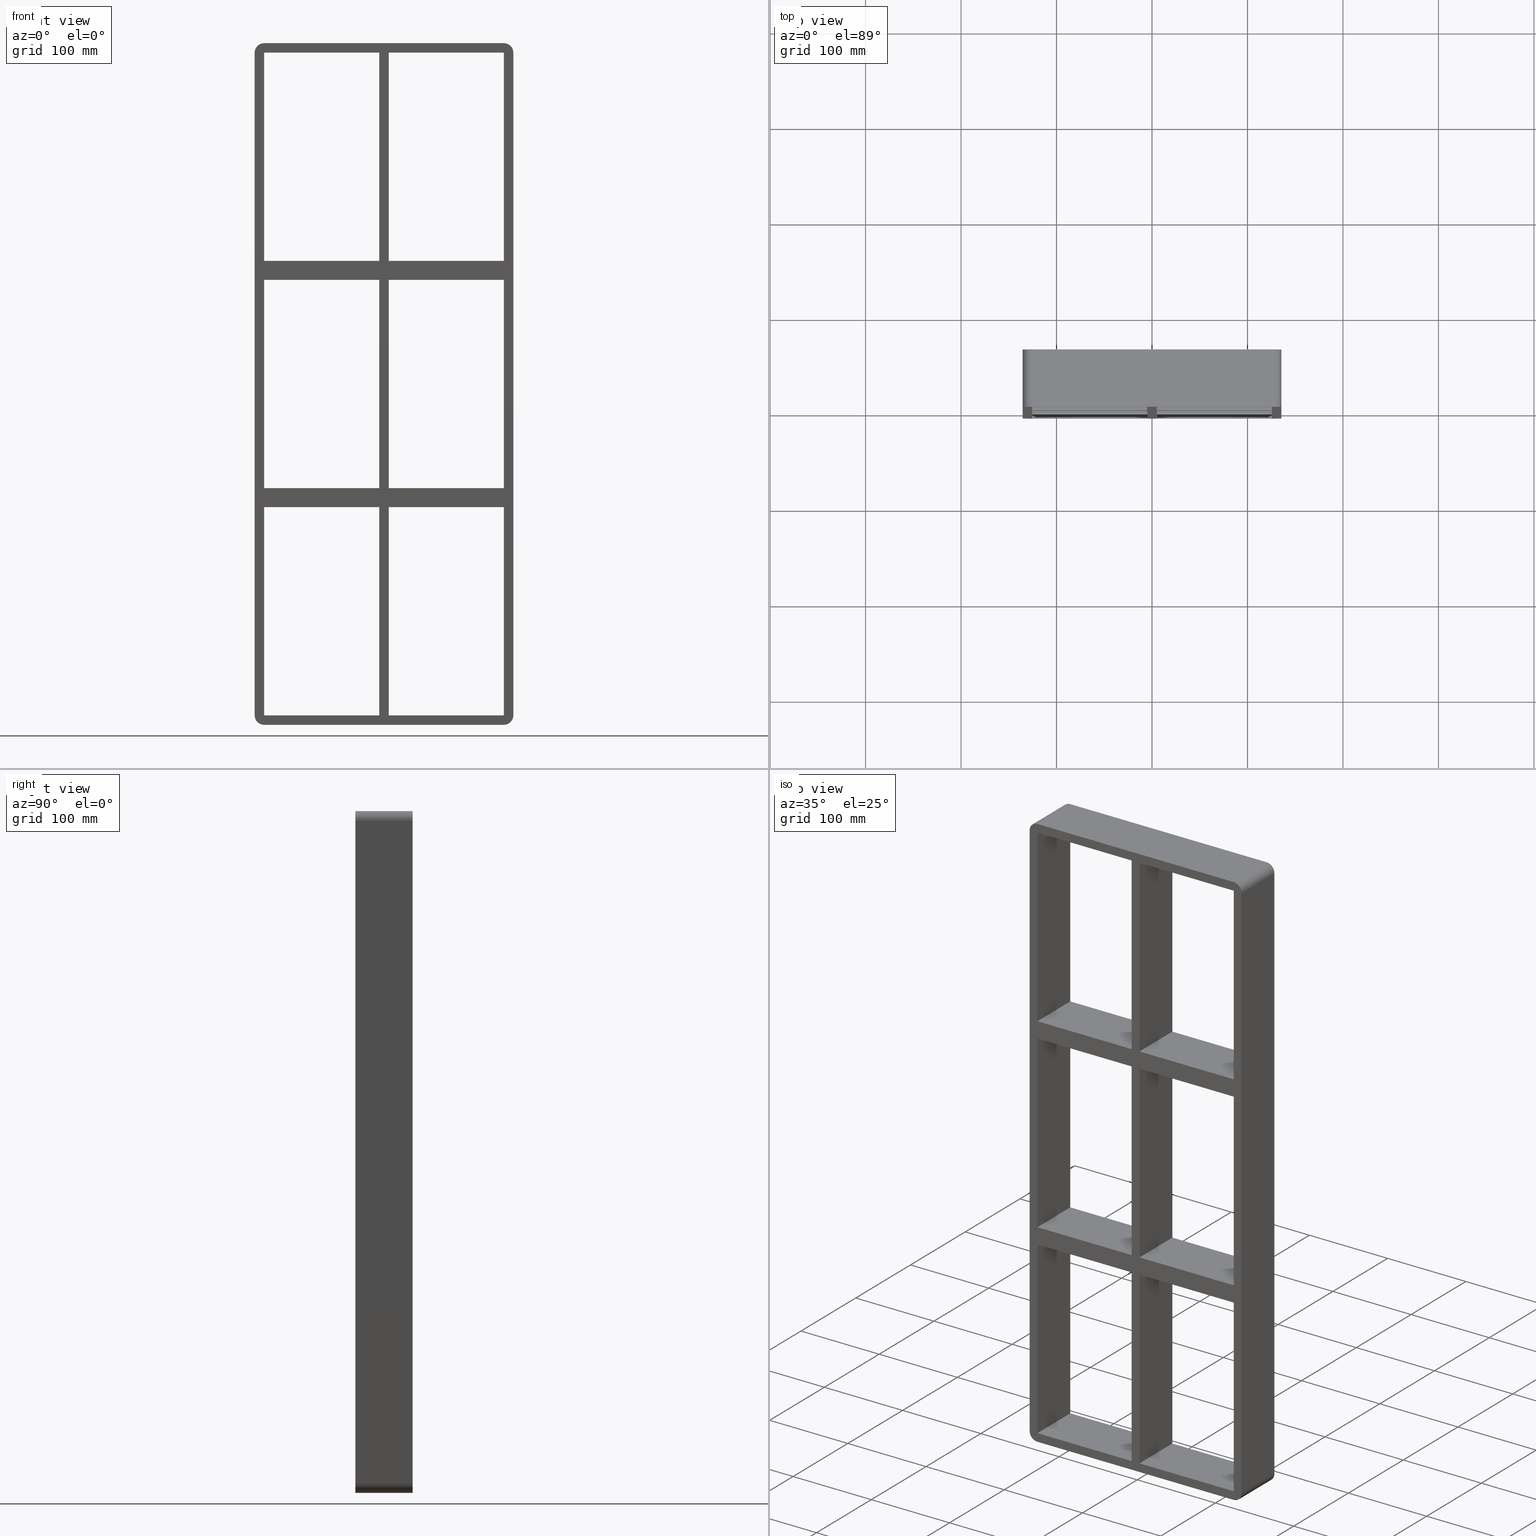
[diagram: canonical four-view strip — front | top / right | iso, engineering-drawing reading convention]
A machine part, canonical four-view strip (front | top / right | iso — engineering-drawing reading convention). The complete STEP part file that produces these views, byte-faithful:
ISO-10303-21;
HEADER;
/****************************************************************
 * Generated by software with PDElib inside                    *
 * PDElib Version v51a, created Wed 11/30/2011                  *
 * ITI Transcendata (http://www.transcendata.com/)              *
 ****************************************************************/
FILE_DESCRIPTION((''),'2;1');
FILE_NAME('C:\\RoxtecConfigurator\\CreatedFiles\\STEP\\S6+6+6X2.stp','2013-06-28T13:57:47',(''),(''),'Autodesk Inventor 2013','Autodesk Inventor 2013','');
FILE_SCHEMA(('AUTOMOTIVE_DESIGN { 1 0 10303 214 1 1 1 1 }'));
ENDSEC;
DATA;
#5=APPLICATION_CONTEXT('automotive design');
#6=APPLICATION_PROTOCOL_DEFINITION('International Standard','automotive_design',2001,#5);
#7=PRODUCT_CONTEXT('',#5,'mechanical');
#8=PRODUCT('roxtec S_SF_G','roxtec S_SF_G',$,(#7));
#9=PRODUCT_RELATED_PRODUCT_CATEGORY('part',$,(#8));
#10=PRODUCT_DEFINITION_FORMATION('',$,#8);
#11=PRODUCT_DEFINITION_CONTEXT('part definition',#5,'design');
#12=PRODUCT_DEFINITION('',$,#10,#11);
#18=(NAMED_UNIT(*)PLANE_ANGLE_UNIT()SI_UNIT($,.RADIAN.));
#19=DIMENSIONAL_EXPONENTS(0.0,0.0,0.0,0.0,0.0,0.0,0.0);
#20=PLANE_ANGLE_MEASURE_WITH_UNIT(PLANE_ANGLE_MEASURE(0.0174532925),#18);
#24=(CONVERSION_BASED_UNIT('DEGREE',#20)NAMED_UNIT(#19)PLANE_ANGLE_UNIT());
#28=(NAMED_UNIT(*)SI_UNIT($,.STERADIAN.)SOLID_ANGLE_UNIT());
#32=(LENGTH_UNIT()NAMED_UNIT(*)SI_UNIT(.MILLI.,.METRE.));
#34=UNCERTAINTY_MEASURE_WITH_UNIT(LENGTH_MEASURE(0.01),#32,'DISTANCE_ACCURACY_VALUE','');
#36=(GEOMETRIC_REPRESENTATION_CONTEXT(3)GLOBAL_UNCERTAINTY_ASSIGNED_CONTEXT((#34))GLOBAL_UNIT_ASSIGNED_CONTEXT((#24,#28,#32))REPRESENTATION_CONTEXT('None','None'));
#37=AXIS2_PLACEMENT_3D('',#38,#39,#40);
#38=CARTESIAN_POINT('',(0.0,0.0,0.0));
#39=DIRECTION('',(0.0,0.0,1.0));
#40=DIRECTION('',(1.0,0.0,0.0));
#41=SHAPE_REPRESENTATION('',(#37),#36);
#42=PRODUCT_DEFINITION_SHAPE('','',#12);
#43=SHAPE_DEFINITION_REPRESENTATION(#42,#41);
#49=(NAMED_UNIT(*)PLANE_ANGLE_UNIT()SI_UNIT($,.RADIAN.));
#50=DIMENSIONAL_EXPONENTS(0.0,0.0,0.0,0.0,0.0,0.0,0.0);
#51=PLANE_ANGLE_MEASURE_WITH_UNIT(PLANE_ANGLE_MEASURE(0.0174532925),#49);
#55=(CONVERSION_BASED_UNIT('DEGREE',#51)NAMED_UNIT(#50)PLANE_ANGLE_UNIT());
#59=(NAMED_UNIT(*)SI_UNIT($,.STERADIAN.)SOLID_ANGLE_UNIT());
#63=(LENGTH_UNIT()NAMED_UNIT(*)SI_UNIT(.MILLI.,.METRE.));
#65=UNCERTAINTY_MEASURE_WITH_UNIT(LENGTH_MEASURE(0.000001),#63,'DISTANCE_ACCURACY_VALUE','');
#67=(GEOMETRIC_REPRESENTATION_CONTEXT(3)GLOBAL_UNCERTAINTY_ASSIGNED_CONTEXT((#65))GLOBAL_UNIT_ASSIGNED_CONTEXT((#55,#59,#63))REPRESENTATION_CONTEXT('','3D'));
#68=CARTESIAN_POINT('',(125.50000000000182,-3.0,108.99999999999062));
#69=DIRECTION('',(0.0,0.0,-1.0));
#70=DIRECTION('',(-1.0,0.0,0.0));
#71=AXIS2_PLACEMENT_3D('',#68,#69,#70);
#72=PLANE('',#71);
#73=CARTESIAN_POINT('',(5.0,57.0,108.99999999999056));
#74=VERTEX_POINT('',#73);
#75=CARTESIAN_POINT('',(5.0,-3.0,108.99999999999061));
#76=VERTEX_POINT('',#75);
#77=CARTESIAN_POINT('',(5.0,57.0,108.99999999999056));
#78=DIRECTION('',(0.0,-1.0,0.0));
#79=VECTOR('',#78,60.0);
#80=LINE('',#77,#79);
#81=EDGE_CURVE('',#74,#76,#80,.T.);
#82=ORIENTED_EDGE('',*,*,#81,.F.);
#83=CARTESIAN_POINT('',(125.50000000000182,57.0,108.99999999999062));
#84=VERTEX_POINT('',#83);
#85=CARTESIAN_POINT('',(125.50000000000182,57.0,108.99999999999062));
#86=DIRECTION('',(-1.0,0.0,0.0));
#87=VECTOR('',#86,120.50000000000182);
#88=LINE('',#85,#87);
#89=EDGE_CURVE('',#84,#74,#88,.T.);
#90=ORIENTED_EDGE('',*,*,#89,.F.);
#91=CARTESIAN_POINT('',(125.50000000000182,-3.0,108.99999999999062));
#92=VERTEX_POINT('',#91);
#93=CARTESIAN_POINT('',(125.5,-3.0,108.99999999999061));
#94=DIRECTION('',(0.0,1.0,0.0));
#95=VECTOR('',#94,60.000000000000007);
#96=LINE('',#93,#95);
#97=EDGE_CURVE('',#92,#84,#96,.T.);
#98=ORIENTED_EDGE('',*,*,#97,.F.);
#99=CARTESIAN_POINT('',(125.50000000000182,-3.0,108.99999999999062));
#100=DIRECTION('',(-1.0,0.0,0.0));
#101=VECTOR('',#100,120.50000000000182);
#102=LINE('',#99,#101);
#103=EDGE_CURVE('',#92,#76,#102,.T.);
#104=ORIENTED_EDGE('',*,*,#103,.T.);
#105=EDGE_LOOP('',(#82,#90,#98,#104));
#106=FACE_OUTER_BOUND('',#105,.T.);
#107=ADVANCED_FACE('',(#106),#72,.T.);
#108=CARTESIAN_POINT('',(-125.49999999999969,-3.0,128.99999999999994));
#109=DIRECTION('',(0.0,0.0,1.0));
#110=DIRECTION('',(1.0,0.0,0.0));
#111=AXIS2_PLACEMENT_3D('',#108,#109,#110);
#112=PLANE('',#111);
#113=CARTESIAN_POINT('',(5.0,-3.0,128.99999999999994));
#114=VERTEX_POINT('',#113);
#115=CARTESIAN_POINT('',(5.0,57.0,128.99999999999994));
#116=VERTEX_POINT('',#115);
#117=CARTESIAN_POINT('',(5.0,-3.0,128.99999999999994));
#118=DIRECTION('',(0.0,1.0,0.0));
#119=VECTOR('',#118,60.0);
#120=LINE('',#117,#119);
#121=EDGE_CURVE('',#114,#116,#120,.T.);
#122=ORIENTED_EDGE('',*,*,#121,.F.);
#123=CARTESIAN_POINT('',(125.49999999999991,-3.0,128.99999999999994));
#124=VERTEX_POINT('',#123);
#125=CARTESIAN_POINT('',(5.0,-3.0,128.99999999999994));
#126=DIRECTION('',(1.0,0.0,0.0));
#127=VECTOR('',#126,120.49999999999991);
#128=LINE('',#125,#127);
#129=EDGE_CURVE('',#114,#124,#128,.T.);
#130=ORIENTED_EDGE('',*,*,#129,.T.);
#131=CARTESIAN_POINT('',(125.4999999999999,57.0,128.99999999999994));
#132=VERTEX_POINT('',#131);
#133=CARTESIAN_POINT('',(125.5,57.000000000000007,128.99999999999994));
#134=DIRECTION('',(0.0,-1.0,0.0));
#135=VECTOR('',#134,60.000000000000007);
#136=LINE('',#133,#135);
#137=EDGE_CURVE('',#132,#124,#136,.T.);
#138=ORIENTED_EDGE('',*,*,#137,.F.);
#139=CARTESIAN_POINT('',(5.0,57.0,128.99999999999994));
#140=DIRECTION('',(1.0,0.0,0.0));
#141=VECTOR('',#140,120.49999999999991);
#142=LINE('',#139,#141);
#143=EDGE_CURVE('',#116,#132,#142,.T.);
#144=ORIENTED_EDGE('',*,*,#143,.F.);
#145=EDGE_LOOP('',(#122,#130,#138,#144));
#146=FACE_OUTER_BOUND('',#145,.T.);
#147=ADVANCED_FACE('',(#146),#112,.T.);
#148=CARTESIAN_POINT('',(-125.49999999999969,-3.0,128.99999999999994));
#149=DIRECTION('',(0.0,0.0,1.0));
#150=DIRECTION('',(1.0,0.0,0.0));
#151=AXIS2_PLACEMENT_3D('',#148,#149,#150);
#152=PLANE('',#151);
#153=CARTESIAN_POINT('',(-5.000000000001347,57.0,128.99999999999991));
#154=VERTEX_POINT('',#153);
#155=CARTESIAN_POINT('',(-5.00000000000135,-3.0,128.99999999999994));
#156=VERTEX_POINT('',#155);
#157=CARTESIAN_POINT('',(-5.00000000000135,57.0,128.99999999999994));
#158=DIRECTION('',(0.0,-1.0,0.0));
#159=VECTOR('',#158,60.0);
#160=LINE('',#157,#159);
#161=EDGE_CURVE('',#154,#156,#160,.T.);
#162=ORIENTED_EDGE('',*,*,#161,.F.);
#163=CARTESIAN_POINT('',(-125.49999999999969,57.0,128.99999999999994));
#164=VERTEX_POINT('',#163);
#165=CARTESIAN_POINT('',(-125.49999999999969,57.0,128.99999999999994));
#166=DIRECTION('',(1.0,0.0,0.0));
#167=VECTOR('',#166,120.49999999999834);
#168=LINE('',#165,#167);
#169=EDGE_CURVE('',#164,#154,#168,.T.);
#170=ORIENTED_EDGE('',*,*,#169,.F.);
#171=CARTESIAN_POINT('',(-125.49999999999969,-3.0,128.99999999999994));
#172=VERTEX_POINT('',#171);
#173=CARTESIAN_POINT('',(-125.5,-3.0,128.99999999999994));
#174=DIRECTION('',(0.0,1.0,0.0));
#175=VECTOR('',#174,60.000000000000007);
#176=LINE('',#173,#175);
#177=EDGE_CURVE('',#172,#164,#176,.T.);
#178=ORIENTED_EDGE('',*,*,#177,.F.);
#179=CARTESIAN_POINT('',(-125.49999999999969,-3.0,128.99999999999994));
#180=DIRECTION('',(1.0,0.0,0.0));
#181=VECTOR('',#180,120.49999999999834);
#182=LINE('',#179,#181);
#183=EDGE_CURVE('',#172,#156,#182,.T.);
#184=ORIENTED_EDGE('',*,*,#183,.T.);
#185=EDGE_LOOP('',(#162,#170,#178,#184));
#186=FACE_OUTER_BOUND('',#185,.T.);
#187=ADVANCED_FACE('',(#186),#152,.T.);
#188=CARTESIAN_POINT('',(125.50000000000182,-3.0,108.99999999999062));
#189=DIRECTION('',(0.0,0.0,-1.0));
#190=DIRECTION('',(-1.0,0.0,0.0));
#191=AXIS2_PLACEMENT_3D('',#188,#189,#190);
#192=PLANE('',#191);
#193=CARTESIAN_POINT('',(-5.00000000000135,-3.0,108.99999999999059));
#194=VERTEX_POINT('',#193);
#195=CARTESIAN_POINT('',(-5.000000000001343,57.0,108.99999999999061));
#196=VERTEX_POINT('',#195);
#197=CARTESIAN_POINT('',(-5.000000000001341,-3.0,108.99999999999059));
#198=DIRECTION('',(0.0,1.0,0.0));
#199=VECTOR('',#198,60.0);
#200=LINE('',#197,#199);
#201=EDGE_CURVE('',#194,#196,#200,.T.);
#202=ORIENTED_EDGE('',*,*,#201,.F.);
#203=CARTESIAN_POINT('',(-125.49999999999969,-3.0,108.99999999999056));
#204=VERTEX_POINT('',#203);
#205=CARTESIAN_POINT('',(-5.000000000001364,-3.0,108.99999999999059));
#206=DIRECTION('',(-1.0,0.0,0.0));
#207=VECTOR('',#206,120.49999999999832);
#208=LINE('',#205,#207);
#209=EDGE_CURVE('',#194,#204,#208,.T.);
#210=ORIENTED_EDGE('',*,*,#209,.T.);
#211=CARTESIAN_POINT('',(-125.49999999999969,57.0,108.99999999999056));
#212=VERTEX_POINT('',#211);
#213=CARTESIAN_POINT('',(-125.5,57.000000000000007,108.99999999999054));
#214=DIRECTION('',(0.0,-1.0,0.0));
#215=VECTOR('',#214,60.000000000000007);
#216=LINE('',#213,#215);
#217=EDGE_CURVE('',#212,#204,#216,.T.);
#218=ORIENTED_EDGE('',*,*,#217,.F.);
#219=CARTESIAN_POINT('',(-5.000000000001364,57.0,108.99999999999059));
#220=DIRECTION('',(-1.0,0.0,0.0));
#221=VECTOR('',#220,120.49999999999832);
#222=LINE('',#219,#221);
#223=EDGE_CURVE('',#196,#212,#222,.T.);
#224=ORIENTED_EDGE('',*,*,#223,.F.);
#225=EDGE_LOOP('',(#202,#210,#218,#224));
#226=FACE_OUTER_BOUND('',#225,.T.);
#227=ADVANCED_FACE('',(#226),#192,.T.);
#228=CARTESIAN_POINT('',(-125.5,0.0,-347.0));
#229=DIRECTION('',(-1.0,0.0,0.0));
#230=DIRECTION('',(0.0,0.0,1.0));
#231=AXIS2_PLACEMENT_3D('',#228,#229,#230);
#232=PLANE('',#231);
#233=ORIENTED_EDGE('',*,*,#217,.T.);
#234=CARTESIAN_POINT('',(-125.49999999999969,-3.0,-109.00000000000006));
#235=VERTEX_POINT('',#234);
#236=CARTESIAN_POINT('',(-125.5,-3.0,-109.00000000000004));
#237=DIRECTION('',(0.0,0.0,1.0));
#238=VECTOR('',#237,217.99999999999062);
#239=LINE('',#236,#238);
#240=EDGE_CURVE('',#235,#204,#239,.T.);
#241=ORIENTED_EDGE('',*,*,#240,.F.);
#242=CARTESIAN_POINT('',(-125.49999999999969,57.0,-109.00000000000006));
#243=VERTEX_POINT('',#242);
#244=CARTESIAN_POINT('',(-125.5,-3.0,-109.00000000000006));
#245=DIRECTION('',(0.0,1.0,0.0));
#246=VECTOR('',#245,60.000000000000007);
#247=LINE('',#244,#246);
#248=EDGE_CURVE('',#235,#243,#247,.T.);
#249=ORIENTED_EDGE('',*,*,#248,.T.);
#250=CARTESIAN_POINT('',(-125.5,57.0,108.99999999999056));
#251=DIRECTION('',(0.0,0.0,-1.0));
#252=VECTOR('',#251,217.99999999999062);
#253=LINE('',#250,#252);
#254=EDGE_CURVE('',#212,#243,#253,.T.);
#255=ORIENTED_EDGE('',*,*,#254,.F.);
#256=EDGE_LOOP('',(#233,#241,#249,#255));
#257=FACE_OUTER_BOUND('',#256,.T.);
#258=ADVANCED_FACE('',(#257),#232,.F.);
#259=CARTESIAN_POINT('',(125.5,0.0,347.0));
#260=DIRECTION('',(1.0,0.0,0.0));
#261=DIRECTION('',(0.0,0.0,-1.0));
#262=AXIS2_PLACEMENT_3D('',#259,#260,#261);
#263=PLANE('',#262);
#264=ORIENTED_EDGE('',*,*,#97,.T.);
#265=CARTESIAN_POINT('',(125.4999999999999,57.0,-109.00000000000006));
#266=VERTEX_POINT('',#265);
#267=CARTESIAN_POINT('',(125.5,57.0,-109.00000000000006));
#268=DIRECTION('',(0.0,0.0,1.0));
#269=VECTOR('',#268,217.99999999999068);
#270=LINE('',#267,#269);
#271=EDGE_CURVE('',#266,#84,#270,.T.);
#272=ORIENTED_EDGE('',*,*,#271,.F.);
#273=CARTESIAN_POINT('',(125.49999999999991,-3.0,-109.00000000000006));
#274=VERTEX_POINT('',#273);
#275=CARTESIAN_POINT('',(125.5,57.000000000000007,-109.00000000000006));
#276=DIRECTION('',(0.0,-1.0,0.0));
#277=VECTOR('',#276,60.000000000000007);
#278=LINE('',#275,#277);
#279=EDGE_CURVE('',#266,#274,#278,.T.);
#280=ORIENTED_EDGE('',*,*,#279,.T.);
#281=CARTESIAN_POINT('',(125.5,-3.0,108.99999999999061));
#282=DIRECTION('',(0.0,0.0,-1.0));
#283=VECTOR('',#282,217.99999999999068);
#284=LINE('',#281,#283);
#285=EDGE_CURVE('',#92,#274,#284,.T.);
#286=ORIENTED_EDGE('',*,*,#285,.F.);
#287=EDGE_LOOP('',(#264,#272,#280,#286));
#288=FACE_OUTER_BOUND('',#287,.T.);
#289=ADVANCED_FACE('',(#288),#263,.F.);
#290=CARTESIAN_POINT('',(125.5,0.0,347.0));
#291=DIRECTION('',(1.0,0.0,0.0));
#292=DIRECTION('',(0.0,0.0,-1.0));
#293=AXIS2_PLACEMENT_3D('',#290,#291,#292);
#294=PLANE('',#293);
#295=ORIENTED_EDGE('',*,*,#137,.T.);
#296=CARTESIAN_POINT('',(125.5,-3.0,347.0));
#297=VERTEX_POINT('',#296);
#298=CARTESIAN_POINT('',(125.5,-3.0,347.0));
#299=DIRECTION('',(0.0,0.0,-1.0));
#300=VECTOR('',#299,218.00000000000006);
#301=LINE('',#298,#300);
#302=EDGE_CURVE('',#297,#124,#301,.T.);
#303=ORIENTED_EDGE('',*,*,#302,.F.);
#304=CARTESIAN_POINT('',(125.5,57.0,347.0));
#305=VERTEX_POINT('',#304);
#306=CARTESIAN_POINT('',(125.5,-3.0,347.0));
#307=DIRECTION('',(0.0,1.0,0.0));
#308=VECTOR('',#307,60.0);
#309=LINE('',#306,#308);
#310=EDGE_CURVE('',#297,#305,#309,.T.);
#311=ORIENTED_EDGE('',*,*,#310,.T.);
#312=CARTESIAN_POINT('',(125.5,57.0,128.99999999999994));
#313=DIRECTION('',(0.0,0.0,1.0));
#314=VECTOR('',#313,218.00000000000006);
#315=LINE('',#312,#314);
#316=EDGE_CURVE('',#132,#305,#315,.T.);
#317=ORIENTED_EDGE('',*,*,#316,.F.);
#318=EDGE_LOOP('',(#295,#303,#311,#317));
#319=FACE_OUTER_BOUND('',#318,.T.);
#320=ADVANCED_FACE('',(#319),#294,.F.);
#321=CARTESIAN_POINT('',(-5.000000000001261,-3.0,-347.0));
#322=DIRECTION('',(-1.0,0.0,0.0));
#323=DIRECTION('',(0.0,0.0,1.0));
#324=AXIS2_PLACEMENT_3D('',#321,#322,#323);
#325=PLANE('',#324);
#326=ORIENTED_EDGE('',*,*,#161,.T.);
#327=CARTESIAN_POINT('',(-5.000000000001386,-3.0,347.0));
#328=VERTEX_POINT('',#327);
#329=CARTESIAN_POINT('',(-5.000000000001347,-3.0,128.99999999999994));
#330=DIRECTION('',(0.0,0.0,1.0));
#331=VECTOR('',#330,218.00000000000006);
#332=LINE('',#329,#331);
#333=EDGE_CURVE('',#156,#328,#332,.T.);
#334=ORIENTED_EDGE('',*,*,#333,.T.);
#335=CARTESIAN_POINT('',(-5.000000000001386,57.0,347.0));
#336=VERTEX_POINT('',#335);
#337=CARTESIAN_POINT('',(-5.000000000001386,57.000000000000007,347.0));
#338=DIRECTION('',(0.0,-1.0,0.0));
#339=VECTOR('',#338,60.000000000000007);
#340=LINE('',#337,#339);
#341=EDGE_CURVE('',#336,#328,#340,.T.);
#342=ORIENTED_EDGE('',*,*,#341,.F.);
#343=CARTESIAN_POINT('',(-5.000000000001347,57.0,128.99999999999994));
#344=DIRECTION('',(0.0,0.0,1.0));
#345=VECTOR('',#344,218.00000000000006);
#346=LINE('',#343,#345);
#347=EDGE_CURVE('',#154,#336,#346,.T.);
#348=ORIENTED_EDGE('',*,*,#347,.F.);
#349=EDGE_LOOP('',(#326,#334,#342,#348));
#350=FACE_OUTER_BOUND('',#349,.T.);
#351=ADVANCED_FACE('',(#350),#325,.T.);
#352=CARTESIAN_POINT('',(-5.000000000001261,-3.0,-347.0));
#353=DIRECTION('',(-1.0,0.0,0.0));
#354=DIRECTION('',(0.0,0.0,1.0));
#355=AXIS2_PLACEMENT_3D('',#352,#353,#354);
#356=PLANE('',#355);
#357=ORIENTED_EDGE('',*,*,#201,.T.);
#358=CARTESIAN_POINT('',(-5.000000000001297,57.0,-109.00000000000006));
#359=VERTEX_POINT('',#358);
#360=CARTESIAN_POINT('',(-5.000000000001304,57.0,-109.00000000000003));
#361=DIRECTION('',(0.0,0.0,1.0));
#362=VECTOR('',#361,217.99999999999065);
#363=LINE('',#360,#362);
#364=EDGE_CURVE('',#359,#196,#363,.T.);
#365=ORIENTED_EDGE('',*,*,#364,.F.);
#366=CARTESIAN_POINT('',(-5.000000000001297,-3.0,-109.00000000000006));
#367=VERTEX_POINT('',#366);
#368=CARTESIAN_POINT('',(-5.000000000001306,57.0,-109.00000000000006));
#369=DIRECTION('',(0.0,-1.0,0.0));
#370=VECTOR('',#369,60.0);
#371=LINE('',#368,#370);
#372=EDGE_CURVE('',#359,#367,#371,.T.);
#373=ORIENTED_EDGE('',*,*,#372,.T.);
#374=CARTESIAN_POINT('',(-5.000000000001304,-3.0,-109.00000000000003));
#375=DIRECTION('',(0.0,0.0,1.0));
#376=VECTOR('',#375,217.99999999999065);
#377=LINE('',#374,#376);
#378=EDGE_CURVE('',#367,#194,#377,.T.);
#379=ORIENTED_EDGE('',*,*,#378,.T.);
#380=EDGE_LOOP('',(#357,#365,#373,#379));
#381=FACE_OUTER_BOUND('',#380,.T.);
#382=ADVANCED_FACE('',(#381),#356,.T.);
#383=CARTESIAN_POINT('',(5.0,-3.0,347.0));
#384=DIRECTION('',(1.0,0.0,0.0));
#385=DIRECTION('',(0.0,0.0,-1.0));
#386=AXIS2_PLACEMENT_3D('',#383,#384,#385);
#387=PLANE('',#386);
#388=ORIENTED_EDGE('',*,*,#121,.T.);
#389=CARTESIAN_POINT('',(5.0,57.0,347.0));
#390=VERTEX_POINT('',#389);
#391=CARTESIAN_POINT('',(5.0,57.0,347.0));
#392=DIRECTION('',(0.0,0.0,-1.0));
#393=VECTOR('',#392,218.00000000000009);
#394=LINE('',#391,#393);
#395=EDGE_CURVE('',#390,#116,#394,.T.);
#396=ORIENTED_EDGE('',*,*,#395,.F.);
#397=CARTESIAN_POINT('',(5.0,-3.0,347.0));
#398=VERTEX_POINT('',#397);
#399=CARTESIAN_POINT('',(5.0,-3.0,347.0));
#400=DIRECTION('',(0.0,1.0,0.0));
#401=VECTOR('',#400,60.000000000000007);
#402=LINE('',#399,#401);
#403=EDGE_CURVE('',#398,#390,#402,.T.);
#404=ORIENTED_EDGE('',*,*,#403,.F.);
#405=CARTESIAN_POINT('',(5.0,-3.0,347.0));
#406=DIRECTION('',(0.0,0.0,-1.0));
#407=VECTOR('',#406,218.00000000000009);
#408=LINE('',#405,#407);
#409=EDGE_CURVE('',#398,#114,#408,.T.);
#410=ORIENTED_EDGE('',*,*,#409,.T.);
#411=EDGE_LOOP('',(#388,#396,#404,#410));
#412=FACE_OUTER_BOUND('',#411,.T.);
#413=ADVANCED_FACE('',(#412),#387,.T.);
#414=CARTESIAN_POINT('',(125.50000000000182,-3.0,-129.00000000000938));
#415=DIRECTION('',(0.0,0.0,-1.0));
#416=DIRECTION('',(-1.0,0.0,0.0));
#417=AXIS2_PLACEMENT_3D('',#414,#415,#416);
#418=PLANE('',#417);
#419=CARTESIAN_POINT('',(5.0,57.0,-129.00000000000941));
#420=VERTEX_POINT('',#419);
#421=CARTESIAN_POINT('',(5.0,-3.0,-129.00000000000941));
#422=VERTEX_POINT('',#421);
#423=CARTESIAN_POINT('',(5.0,57.0,-129.00000000000938));
#424=DIRECTION('',(0.0,-1.0,0.0));
#425=VECTOR('',#424,60.0);
#426=LINE('',#423,#425);
#427=EDGE_CURVE('',#420,#422,#426,.T.);
#428=ORIENTED_EDGE('',*,*,#427,.F.);
#429=CARTESIAN_POINT('',(125.50000000000182,57.0,-129.00000000000938));
#430=VERTEX_POINT('',#429);
#431=CARTESIAN_POINT('',(125.50000000000182,57.0,-129.00000000000938));
#432=DIRECTION('',(-1.0,0.0,0.0));
#433=VECTOR('',#432,120.50000000000182);
#434=LINE('',#431,#433);
#435=EDGE_CURVE('',#430,#420,#434,.T.);
#436=ORIENTED_EDGE('',*,*,#435,.F.);
#437=CARTESIAN_POINT('',(125.50000000000182,-3.0,-129.00000000000938));
#438=VERTEX_POINT('',#437);
#439=CARTESIAN_POINT('',(125.5,-3.0,-129.00000000000938));
#440=DIRECTION('',(0.0,1.0,0.0));
#441=VECTOR('',#440,60.000000000000007);
#442=LINE('',#439,#441);
#443=EDGE_CURVE('',#438,#430,#442,.T.);
#444=ORIENTED_EDGE('',*,*,#443,.F.);
#445=CARTESIAN_POINT('',(125.50000000000182,-3.0,-129.00000000000938));
#446=DIRECTION('',(-1.0,0.0,0.0));
#447=VECTOR('',#446,120.50000000000182);
#448=LINE('',#445,#447);
#449=EDGE_CURVE('',#438,#422,#448,.T.);
#450=ORIENTED_EDGE('',*,*,#449,.T.);
#451=EDGE_LOOP('',(#428,#436,#444,#450));
#452=FACE_OUTER_BOUND('',#451,.T.);
#453=ADVANCED_FACE('',(#452),#418,.T.);
#454=CARTESIAN_POINT('',(125.50000000000182,-3.0,-129.00000000000938));
#455=DIRECTION('',(0.0,0.0,-1.0));
#456=DIRECTION('',(-1.0,0.0,0.0));
#457=AXIS2_PLACEMENT_3D('',#454,#455,#456);
#458=PLANE('',#457);
#459=CARTESIAN_POINT('',(-5.000000000001297,-3.0,-129.00000000000941));
#460=VERTEX_POINT('',#459);
#461=CARTESIAN_POINT('',(-5.000000000001297,57.0,-129.00000000000941));
#462=VERTEX_POINT('',#461);
#463=CARTESIAN_POINT('',(-5.000000000001297,-3.0,-129.00000000000941));
#464=DIRECTION('',(0.0,1.0,0.0));
#465=VECTOR('',#464,60.0);
#466=LINE('',#463,#465);
#467=EDGE_CURVE('',#460,#462,#466,.T.);
#468=ORIENTED_EDGE('',*,*,#467,.F.);
#469=CARTESIAN_POINT('',(-125.49999999999969,-3.0,-129.00000000000944));
#470=VERTEX_POINT('',#469);
#471=CARTESIAN_POINT('',(-5.000000000001307,-3.0,-129.00000000000941));
#472=DIRECTION('',(-1.0,0.0,0.0));
#473=VECTOR('',#472,120.49999999999838);
#474=LINE('',#471,#473);
#475=EDGE_CURVE('',#460,#470,#474,.T.);
#476=ORIENTED_EDGE('',*,*,#475,.T.);
#477=CARTESIAN_POINT('',(-125.49999999999969,57.0,-129.00000000000944));
#478=VERTEX_POINT('',#477);
#479=CARTESIAN_POINT('',(-125.5,57.000000000000007,-129.00000000000944));
#480=DIRECTION('',(0.0,-1.0,0.0));
#481=VECTOR('',#480,60.000000000000007);
#482=LINE('',#479,#481);
#483=EDGE_CURVE('',#478,#470,#482,.T.);
#484=ORIENTED_EDGE('',*,*,#483,.F.);
#485=CARTESIAN_POINT('',(-5.000000000001307,57.0,-129.00000000000941));
#486=DIRECTION('',(-1.0,0.0,0.0));
#487=VECTOR('',#486,120.49999999999838);
#488=LINE('',#485,#487);
#489=EDGE_CURVE('',#462,#478,#488,.T.);
#490=ORIENTED_EDGE('',*,*,#489,.F.);
#491=EDGE_LOOP('',(#468,#476,#484,#490));
#492=FACE_OUTER_BOUND('',#491,.T.);
#493=ADVANCED_FACE('',(#492),#458,.T.);
#494=CARTESIAN_POINT('',(-125.49999999999969,-3.0,-109.00000000000006));
#495=DIRECTION('',(0.0,0.0,1.0));
#496=DIRECTION('',(1.0,0.0,0.0));
#497=AXIS2_PLACEMENT_3D('',#494,#495,#496);
#498=PLANE('',#497);
#499=CARTESIAN_POINT('',(5.0,-3.0,-109.00000000000006));
#500=VERTEX_POINT('',#499);
#501=CARTESIAN_POINT('',(5.0,57.0,-109.00000000000006));
#502=VERTEX_POINT('',#501);
#503=CARTESIAN_POINT('',(5.0,-3.0,-109.00000000000006));
#504=DIRECTION('',(0.0,1.0,0.0));
#505=VECTOR('',#504,60.0);
#506=LINE('',#503,#505);
#507=EDGE_CURVE('',#500,#502,#506,.T.);
#508=ORIENTED_EDGE('',*,*,#507,.F.);
#509=CARTESIAN_POINT('',(5.0,-3.0,-109.00000000000006));
#510=DIRECTION('',(1.0,0.0,0.0));
#511=VECTOR('',#510,120.49999999999991);
#512=LINE('',#509,#511);
#513=EDGE_CURVE('',#500,#274,#512,.T.);
#514=ORIENTED_EDGE('',*,*,#513,.T.);
#515=ORIENTED_EDGE('',*,*,#279,.F.);
#516=CARTESIAN_POINT('',(5.0,57.0,-109.00000000000006));
#517=DIRECTION('',(1.0,0.0,0.0));
#518=VECTOR('',#517,120.49999999999991);
#519=LINE('',#516,#518);
#520=EDGE_CURVE('',#502,#266,#519,.T.);
#521=ORIENTED_EDGE('',*,*,#520,.F.);
#522=EDGE_LOOP('',(#508,#514,#515,#521));
#523=FACE_OUTER_BOUND('',#522,.T.);
#524=ADVANCED_FACE('',(#523),#498,.T.);
#525=CARTESIAN_POINT('',(-125.49999999999969,-3.0,-109.00000000000006));
#526=DIRECTION('',(0.0,0.0,1.0));
#527=DIRECTION('',(1.0,0.0,0.0));
#528=AXIS2_PLACEMENT_3D('',#525,#526,#527);
#529=PLANE('',#528);
#530=ORIENTED_EDGE('',*,*,#372,.F.);
#531=CARTESIAN_POINT('',(-125.49999999999969,57.0,-109.00000000000006));
#532=DIRECTION('',(1.0,0.0,0.0));
#533=VECTOR('',#532,120.49999999999839);
#534=LINE('',#531,#533);
#535=EDGE_CURVE('',#243,#359,#534,.T.);
#536=ORIENTED_EDGE('',*,*,#535,.F.);
#537=ORIENTED_EDGE('',*,*,#248,.F.);
#538=CARTESIAN_POINT('',(-125.49999999999969,-3.0,-109.00000000000006));
#539=DIRECTION('',(1.0,0.0,0.0));
#540=VECTOR('',#539,120.49999999999839);
#541=LINE('',#538,#540);
#542=EDGE_CURVE('',#235,#367,#541,.T.);
#543=ORIENTED_EDGE('',*,*,#542,.T.);
#544=EDGE_LOOP('',(#530,#536,#537,#543));
#545=FACE_OUTER_BOUND('',#544,.T.);
#546=ADVANCED_FACE('',(#545),#529,.T.);
#547=CARTESIAN_POINT('',(-125.5,0.0,-347.0));
#548=DIRECTION('',(-1.0,0.0,0.0));
#549=DIRECTION('',(0.0,0.0,1.0));
#550=AXIS2_PLACEMENT_3D('',#547,#548,#549);
#551=PLANE('',#550);
#552=ORIENTED_EDGE('',*,*,#177,.T.);
#553=CARTESIAN_POINT('',(-125.5,57.0,347.0));
#554=VERTEX_POINT('',#553);
#555=CARTESIAN_POINT('',(-125.5,57.0,347.0));
#556=DIRECTION('',(0.0,0.0,-1.0));
#557=VECTOR('',#556,218.00000000000006);
#558=LINE('',#555,#557);
#559=EDGE_CURVE('',#554,#164,#558,.T.);
#560=ORIENTED_EDGE('',*,*,#559,.F.);
#561=CARTESIAN_POINT('',(-125.5,-3.0,347.0));
#562=VERTEX_POINT('',#561);
#563=CARTESIAN_POINT('',(-125.5,-3.0,347.0));
#564=DIRECTION('',(0.0,1.0,0.0));
#565=VECTOR('',#564,60.0);
#566=LINE('',#563,#565);
#567=EDGE_CURVE('',#562,#554,#566,.T.);
#568=ORIENTED_EDGE('',*,*,#567,.F.);
#569=CARTESIAN_POINT('',(-125.5,-3.0,128.99999999999994));
#570=DIRECTION('',(0.0,0.0,1.0));
#571=VECTOR('',#570,218.00000000000006);
#572=LINE('',#569,#571);
#573=EDGE_CURVE('',#172,#562,#572,.T.);
#574=ORIENTED_EDGE('',*,*,#573,.F.);
#575=EDGE_LOOP('',(#552,#560,#568,#574));
#576=FACE_OUTER_BOUND('',#575,.T.);
#577=ADVANCED_FACE('',(#576),#551,.F.);
#578=CARTESIAN_POINT('',(125.5,0.0,347.0));
#579=DIRECTION('',(1.0,0.0,0.0));
#580=DIRECTION('',(0.0,0.0,-1.0));
#581=AXIS2_PLACEMENT_3D('',#578,#579,#580);
#582=PLANE('',#581);
#583=ORIENTED_EDGE('',*,*,#443,.T.);
#584=CARTESIAN_POINT('',(125.5,57.0,-347.0));
#585=VERTEX_POINT('',#584);
#586=CARTESIAN_POINT('',(125.5,57.0,-347.0));
#587=DIRECTION('',(0.0,0.0,1.0));
#588=VECTOR('',#587,217.99999999999062);
#589=LINE('',#586,#588);
#590=EDGE_CURVE('',#585,#430,#589,.T.);
#591=ORIENTED_EDGE('',*,*,#590,.F.);
#592=CARTESIAN_POINT('',(125.5,-3.0,-347.0));
#593=VERTEX_POINT('',#592);
#594=CARTESIAN_POINT('',(125.5,57.0,-347.0));
#595=DIRECTION('',(0.0,-1.0,0.0));
#596=VECTOR('',#595,60.0);
#597=LINE('',#594,#596);
#598=EDGE_CURVE('',#585,#593,#597,.T.);
#599=ORIENTED_EDGE('',*,*,#598,.T.);
#600=CARTESIAN_POINT('',(125.5,-3.0,-129.00000000000938));
#601=DIRECTION('',(0.0,0.0,-1.0));
#602=VECTOR('',#601,217.99999999999062);
#603=LINE('',#600,#602);
#604=EDGE_CURVE('',#438,#593,#603,.T.);
#605=ORIENTED_EDGE('',*,*,#604,.F.);
#606=EDGE_LOOP('',(#583,#591,#599,#605));
#607=FACE_OUTER_BOUND('',#606,.T.);
#608=ADVANCED_FACE('',(#607),#582,.F.);
#609=CARTESIAN_POINT('',(0.0,57.0,0.0));
#610=DIRECTION('',(0.0,1.0,0.0));
#611=DIRECTION('',(0.0,0.0,1.0));
#612=AXIS2_PLACEMENT_3D('',#609,#610,#611);
#613=PLANE('',#612);
#614=CARTESIAN_POINT('',(125.5,57.0,-357.0));
#615=VERTEX_POINT('',#614);
#616=CARTESIAN_POINT('',(135.5,57.0,-347.0));
#617=VERTEX_POINT('',#616);
#618=CARTESIAN_POINT('',(125.5,57.0,-347.0));
#619=DIRECTION('',(0.0,-1.0,0.0));
#620=DIRECTION('',(0.707106781186547,0.0,-0.707106781186547));
#621=AXIS2_PLACEMENT_3D('',#618,#619,#620);
#622=CIRCLE('',#621,9.999999999999998);
#623=EDGE_CURVE('',#615,#617,#622,.T.);
#624=ORIENTED_EDGE('',*,*,#623,.F.);
#625=CARTESIAN_POINT('',(-125.5,57.0,-357.0));
#626=VERTEX_POINT('',#625);
#627=CARTESIAN_POINT('',(125.5,57.0,-357.0));
#628=DIRECTION('',(-1.0,0.0,0.0));
#629=VECTOR('',#628,251.0);
#630=LINE('',#627,#629);
#631=EDGE_CURVE('',#615,#626,#630,.T.);
#632=ORIENTED_EDGE('',*,*,#631,.T.);
#633=CARTESIAN_POINT('',(-135.5,57.0,-347.0));
#634=VERTEX_POINT('',#633);
#635=CARTESIAN_POINT('',(-125.5,57.0,-347.0));
#636=DIRECTION('',(0.0,-1.0,0.0));
#637=DIRECTION('',(-0.707106781186547,0.0,-0.707106781186547));
#638=AXIS2_PLACEMENT_3D('',#635,#636,#637);
#639=CIRCLE('',#638,9.999999999999998);
#640=EDGE_CURVE('',#634,#626,#639,.T.);
#641=ORIENTED_EDGE('',*,*,#640,.F.);
#642=CARTESIAN_POINT('',(-135.5,57.0,347.0));
#643=VERTEX_POINT('',#642);
#644=CARTESIAN_POINT('',(-135.5,57.0,-347.0));
#645=DIRECTION('',(0.0,0.0,1.0));
#646=VECTOR('',#645,694.0);
#647=LINE('',#644,#646);
#648=EDGE_CURVE('',#634,#643,#647,.T.);
#649=ORIENTED_EDGE('',*,*,#648,.T.);
#650=CARTESIAN_POINT('',(-125.5,57.0,357.0));
#651=VERTEX_POINT('',#650);
#652=CARTESIAN_POINT('',(-125.5,57.0,347.0));
#653=DIRECTION('',(0.0,-1.0,0.0));
#654=DIRECTION('',(-0.707106781186547,0.0,0.707106781186547));
#655=AXIS2_PLACEMENT_3D('',#652,#653,#654);
#656=CIRCLE('',#655,9.999999999999998);
#657=EDGE_CURVE('',#651,#643,#656,.T.);
#658=ORIENTED_EDGE('',*,*,#657,.F.);
#659=CARTESIAN_POINT('',(125.5,57.0,357.0));
#660=VERTEX_POINT('',#659);
#661=CARTESIAN_POINT('',(-125.5,57.0,357.0));
#662=DIRECTION('',(1.0,0.0,0.0));
#663=VECTOR('',#662,251.0);
#664=LINE('',#661,#663);
#665=EDGE_CURVE('',#651,#660,#664,.T.);
#666=ORIENTED_EDGE('',*,*,#665,.T.);
#667=CARTESIAN_POINT('',(135.5,57.0,347.0));
#668=VERTEX_POINT('',#667);
#669=CARTESIAN_POINT('',(125.5,57.0,347.0));
#670=DIRECTION('',(0.0,-1.0,0.0));
#671=DIRECTION('',(0.707106781186547,0.0,0.707106781186547));
#672=AXIS2_PLACEMENT_3D('',#669,#670,#671);
#673=CIRCLE('',#672,9.999999999999998);
#674=EDGE_CURVE('',#668,#660,#673,.T.);
#675=ORIENTED_EDGE('',*,*,#674,.F.);
#676=CARTESIAN_POINT('',(135.5,57.0,347.0));
#677=DIRECTION('',(0.0,0.0,-1.0));
#678=VECTOR('',#677,694.0);
#679=LINE('',#676,#678);
#680=EDGE_CURVE('',#668,#617,#679,.T.);
#681=ORIENTED_EDGE('',*,*,#680,.T.);
#682=EDGE_LOOP('',(#624,#632,#641,#649,#658,#666,#675,#681));
#683=FACE_OUTER_BOUND('',#682,.T.);
#684=ORIENTED_EDGE('',*,*,#254,.T.);
#685=ORIENTED_EDGE('',*,*,#535,.T.);
#686=ORIENTED_EDGE('',*,*,#364,.T.);
#687=ORIENTED_EDGE('',*,*,#223,.T.);
#688=EDGE_LOOP('',(#684,#685,#686,#687));
#689=FACE_BOUND('',#688,.T.);
#690=ORIENTED_EDGE('',*,*,#316,.T.);
#691=CARTESIAN_POINT('',(125.50000000000003,57.0,347.0));
#692=DIRECTION('',(-1.0,0.0,0.0));
#693=VECTOR('',#692,120.50000000000003);
#694=LINE('',#691,#693);
#695=EDGE_CURVE('',#305,#390,#694,.T.);
#696=ORIENTED_EDGE('',*,*,#695,.T.);
#697=ORIENTED_EDGE('',*,*,#395,.T.);
#698=ORIENTED_EDGE('',*,*,#143,.T.);
#699=EDGE_LOOP('',(#690,#696,#697,#698));
#700=FACE_BOUND('',#699,.T.);
#701=ORIENTED_EDGE('',*,*,#89,.T.);
#702=CARTESIAN_POINT('',(5.0,57.0,108.99999999999054));
#703=DIRECTION('',(0.0,0.0,-1.0));
#704=VECTOR('',#703,217.99999999999065);
#705=LINE('',#702,#704);
#706=EDGE_CURVE('',#74,#502,#705,.T.);
#707=ORIENTED_EDGE('',*,*,#706,.T.);
#708=ORIENTED_EDGE('',*,*,#520,.T.);
#709=ORIENTED_EDGE('',*,*,#271,.T.);
#710=EDGE_LOOP('',(#701,#707,#708,#709));
#711=FACE_BOUND('',#710,.T.);
#712=ORIENTED_EDGE('',*,*,#169,.T.);
#713=ORIENTED_EDGE('',*,*,#347,.T.);
#714=CARTESIAN_POINT('',(-5.000000000001379,57.0,347.0));
#715=DIRECTION('',(-1.0,0.0,0.0));
#716=VECTOR('',#715,120.49999999999862);
#717=LINE('',#714,#716);
#718=EDGE_CURVE('',#336,#554,#717,.T.);
#719=ORIENTED_EDGE('',*,*,#718,.T.);
#720=ORIENTED_EDGE('',*,*,#559,.T.);
#721=EDGE_LOOP('',(#712,#713,#719,#720));
#722=FACE_BOUND('',#721,.T.);
#723=CARTESIAN_POINT('',(-125.5,57.0,-347.0));
#724=VERTEX_POINT('',#723);
#725=CARTESIAN_POINT('',(-125.5,57.0,-129.00000000000944));
#726=DIRECTION('',(0.0,0.0,-1.0));
#727=VECTOR('',#726,217.99999999999056);
#728=LINE('',#725,#727);
#729=EDGE_CURVE('',#478,#724,#728,.T.);
#730=ORIENTED_EDGE('',*,*,#729,.T.);
#731=CARTESIAN_POINT('',(-5.000000000001261,57.0,-347.0));
#732=VERTEX_POINT('',#731);
#733=CARTESIAN_POINT('',(-125.50000000000003,57.0,-347.0));
#734=DIRECTION('',(1.0,0.0,0.0));
#735=VECTOR('',#734,120.49999999999876);
#736=LINE('',#733,#735);
#737=EDGE_CURVE('',#724,#732,#736,.T.);
#738=ORIENTED_EDGE('',*,*,#737,.T.);
#739=CARTESIAN_POINT('',(-5.000000000001261,57.0,-347.0));
#740=DIRECTION('',(0.0,0.0,1.0));
#741=VECTOR('',#740,217.99999999999059);
#742=LINE('',#739,#741);
#743=EDGE_CURVE('',#732,#462,#742,.T.);
#744=ORIENTED_EDGE('',*,*,#743,.T.);
#745=ORIENTED_EDGE('',*,*,#489,.T.);
#746=EDGE_LOOP('',(#730,#738,#744,#745));
#747=FACE_BOUND('',#746,.T.);
#748=ORIENTED_EDGE('',*,*,#435,.T.);
#749=CARTESIAN_POINT('',(5.0,57.0,-346.99999999998408));
#750=VERTEX_POINT('',#749);
#751=CARTESIAN_POINT('',(5.0,57.0,-129.00000000000944));
#752=DIRECTION('',(0.0,0.0,-1.0));
#753=VECTOR('',#752,217.99999999997465);
#754=LINE('',#751,#753);
#755=EDGE_CURVE('',#420,#750,#754,.T.);
#756=ORIENTED_EDGE('',*,*,#755,.T.);
#757=CARTESIAN_POINT('',(5.0,57.0,-347.0));
#758=DIRECTION('',(1.0,0.0,0.0));
#759=VECTOR('',#758,120.5);
#760=LINE('',#757,#759);
#761=EDGE_CURVE('',#750,#585,#760,.T.);
#762=ORIENTED_EDGE('',*,*,#761,.T.);
#763=ORIENTED_EDGE('',*,*,#590,.T.);
#764=EDGE_LOOP('',(#748,#756,#762,#763));
#765=FACE_BOUND('',#764,.T.);
#766=ADVANCED_FACE('',(#683,#689,#700,#711,#722,#747,#765),#613,.T.);
#767=CARTESIAN_POINT('',(5.0,-3.0,347.0));
#768=DIRECTION('',(1.0,0.0,0.0));
#769=DIRECTION('',(0.0,0.0,-1.0));
#770=AXIS2_PLACEMENT_3D('',#767,#768,#769);
#771=PLANE('',#770);
#772=ORIENTED_EDGE('',*,*,#81,.T.);
#773=CARTESIAN_POINT('',(5.0,-3.0,108.99999999999056));
#774=DIRECTION('',(0.0,0.0,-1.0));
#775=VECTOR('',#774,217.99999999999068);
#776=LINE('',#773,#775);
#777=EDGE_CURVE('',#76,#500,#776,.T.);
#778=ORIENTED_EDGE('',*,*,#777,.T.);
#779=ORIENTED_EDGE('',*,*,#507,.T.);
#780=ORIENTED_EDGE('',*,*,#706,.F.);
#781=EDGE_LOOP('',(#772,#778,#779,#780));
#782=FACE_OUTER_BOUND('',#781,.T.);
#783=ADVANCED_FACE('',(#782),#771,.T.);
#784=CARTESIAN_POINT('',(-5.000000000001261,-3.0,-347.0));
#785=DIRECTION('',(-1.0,0.0,0.0));
#786=DIRECTION('',(0.0,0.0,1.0));
#787=AXIS2_PLACEMENT_3D('',#784,#785,#786);
#788=PLANE('',#787);
#789=ORIENTED_EDGE('',*,*,#467,.T.);
#790=ORIENTED_EDGE('',*,*,#743,.F.);
#791=CARTESIAN_POINT('',(-5.000000000001261,-3.0,-347.0));
#792=VERTEX_POINT('',#791);
#793=CARTESIAN_POINT('',(-5.000000000001261,-3.0,-347.0));
#794=DIRECTION('',(0.0,1.0,0.0));
#795=VECTOR('',#794,60.000000000000007);
#796=LINE('',#793,#795);
#797=EDGE_CURVE('',#792,#732,#796,.T.);
#798=ORIENTED_EDGE('',*,*,#797,.F.);
#799=CARTESIAN_POINT('',(-5.000000000001261,-3.0,-347.0));
#800=DIRECTION('',(0.0,0.0,1.0));
#801=VECTOR('',#800,217.99999999999059);
#802=LINE('',#799,#801);
#803=EDGE_CURVE('',#792,#460,#802,.T.);
#804=ORIENTED_EDGE('',*,*,#803,.T.);
#805=EDGE_LOOP('',(#789,#790,#798,#804));
#806=FACE_OUTER_BOUND('',#805,.T.);
#807=ADVANCED_FACE('',(#806),#788,.T.);
#808=CARTESIAN_POINT('',(5.0,-3.0,347.0));
#809=DIRECTION('',(1.0,0.0,0.0));
#810=DIRECTION('',(0.0,0.0,-1.0));
#811=AXIS2_PLACEMENT_3D('',#808,#809,#810);
#812=PLANE('',#811);
#813=ORIENTED_EDGE('',*,*,#427,.T.);
#814=CARTESIAN_POINT('',(5.0,-3.0,-346.9999999999842));
#815=VERTEX_POINT('',#814);
#816=CARTESIAN_POINT('',(5.0,-3.0,-129.00000000000944));
#817=DIRECTION('',(0.0,0.0,-1.0));
#818=VECTOR('',#817,217.99999999997465);
#819=LINE('',#816,#818);
#820=EDGE_CURVE('',#422,#815,#819,.T.);
#821=ORIENTED_EDGE('',*,*,#820,.T.);
#822=CARTESIAN_POINT('',(5.0,57.000000000000007,-347.0));
#823=DIRECTION('',(0.0,-1.0,0.0));
#824=VECTOR('',#823,60.000000000000007);
#825=LINE('',#822,#824);
#826=EDGE_CURVE('',#750,#815,#825,.T.);
#827=ORIENTED_EDGE('',*,*,#826,.F.);
#828=ORIENTED_EDGE('',*,*,#755,.F.);
#829=EDGE_LOOP('',(#813,#821,#827,#828));
#830=FACE_OUTER_BOUND('',#829,.T.);
#831=ADVANCED_FACE('',(#830),#812,.T.);
#832=CARTESIAN_POINT('',(125.5,0.0,-347.0));
#833=DIRECTION('',(0.0,0.0,-1.0));
#834=DIRECTION('',(-1.0,0.0,0.0));
#835=AXIS2_PLACEMENT_3D('',#832,#833,#834);
#836=PLANE('',#835);
#837=ORIENTED_EDGE('',*,*,#797,.T.);
#838=ORIENTED_EDGE('',*,*,#737,.F.);
#839=CARTESIAN_POINT('',(-125.5,-3.0,-347.0));
#840=VERTEX_POINT('',#839);
#841=CARTESIAN_POINT('',(-125.5,-3.0,-347.0));
#842=DIRECTION('',(0.0,1.0,0.0));
#843=VECTOR('',#842,60.0);
#844=LINE('',#841,#843);
#845=EDGE_CURVE('',#840,#724,#844,.T.);
#846=ORIENTED_EDGE('',*,*,#845,.F.);
#847=CARTESIAN_POINT('',(-5.000000000001265,-3.0,-347.0));
#848=DIRECTION('',(-1.0,0.0,0.0));
#849=VECTOR('',#848,120.49999999999876);
#850=LINE('',#847,#849);
#851=EDGE_CURVE('',#792,#840,#850,.T.);
#852=ORIENTED_EDGE('',*,*,#851,.F.);
#853=EDGE_LOOP('',(#837,#838,#846,#852));
#854=FACE_OUTER_BOUND('',#853,.T.);
#855=ADVANCED_FACE('',(#854),#836,.F.);
#856=CARTESIAN_POINT('',(125.5,0.0,-347.0));
#857=DIRECTION('',(0.0,0.0,-1.0));
#858=DIRECTION('',(-1.0,0.0,0.0));
#859=AXIS2_PLACEMENT_3D('',#856,#857,#858);
#860=PLANE('',#859);
#861=ORIENTED_EDGE('',*,*,#826,.T.);
#862=CARTESIAN_POINT('',(125.5,-3.0,-347.0));
#863=DIRECTION('',(-1.0,0.0,0.0));
#864=VECTOR('',#863,120.5);
#865=LINE('',#862,#864);
#866=EDGE_CURVE('',#593,#815,#865,.T.);
#867=ORIENTED_EDGE('',*,*,#866,.F.);
#868=ORIENTED_EDGE('',*,*,#598,.F.);
#869=ORIENTED_EDGE('',*,*,#761,.F.);
#870=EDGE_LOOP('',(#861,#867,#868,#869));
#871=FACE_OUTER_BOUND('',#870,.T.);
#872=ADVANCED_FACE('',(#871),#860,.F.);
#873=CARTESIAN_POINT('',(-125.5,0.0,347.0));
#874=DIRECTION('',(0.0,0.0,1.0));
#875=DIRECTION('',(1.0,0.0,0.0));
#876=AXIS2_PLACEMENT_3D('',#873,#874,#875);
#877=PLANE('',#876);
#878=ORIENTED_EDGE('',*,*,#403,.T.);
#879=ORIENTED_EDGE('',*,*,#695,.F.);
#880=ORIENTED_EDGE('',*,*,#310,.F.);
#881=CARTESIAN_POINT('',(5.0,-3.0,347.0));
#882=DIRECTION('',(1.0,0.0,0.0));
#883=VECTOR('',#882,120.50000000000003);
#884=LINE('',#881,#883);
#885=EDGE_CURVE('',#398,#297,#884,.T.);
#886=ORIENTED_EDGE('',*,*,#885,.F.);
#887=EDGE_LOOP('',(#878,#879,#880,#886));
#888=FACE_OUTER_BOUND('',#887,.T.);
#889=ADVANCED_FACE('',(#888),#877,.F.);
#890=CARTESIAN_POINT('',(-125.5,0.0,347.0));
#891=DIRECTION('',(0.0,0.0,1.0));
#892=DIRECTION('',(1.0,0.0,0.0));
#893=AXIS2_PLACEMENT_3D('',#890,#891,#892);
#894=PLANE('',#893);
#895=ORIENTED_EDGE('',*,*,#341,.T.);
#896=CARTESIAN_POINT('',(-125.5,-3.0,347.0));
#897=DIRECTION('',(1.0,0.0,0.0));
#898=VECTOR('',#897,120.49999999999862);
#899=LINE('',#896,#898);
#900=EDGE_CURVE('',#562,#328,#899,.T.);
#901=ORIENTED_EDGE('',*,*,#900,.F.);
#902=ORIENTED_EDGE('',*,*,#567,.T.);
#903=ORIENTED_EDGE('',*,*,#718,.F.);
#904=EDGE_LOOP('',(#895,#901,#902,#903));
#905=FACE_OUTER_BOUND('',#904,.T.);
#906=ADVANCED_FACE('',(#905),#894,.F.);
#907=CARTESIAN_POINT('',(125.5,0.0,-347.0));
#908=DIRECTION('',(0.0,1.0,0.0));
#909=DIRECTION('',(0.707106781186547,0.0,-0.707106781186547));
#910=AXIS2_PLACEMENT_3D('',#907,#908,#909);
#911=CYLINDRICAL_SURFACE('',#910,10.0);
#912=ORIENTED_EDGE('',*,*,#623,.T.);
#913=CARTESIAN_POINT('',(135.5,-3.0,-347.0));
#914=VERTEX_POINT('',#913);
#915=CARTESIAN_POINT('',(135.5,57.0,-347.0));
#916=DIRECTION('',(0.0,-1.0,0.0));
#917=VECTOR('',#916,60.0);
#918=LINE('',#915,#917);
#919=EDGE_CURVE('',#617,#914,#918,.T.);
#920=ORIENTED_EDGE('',*,*,#919,.T.);
#921=CARTESIAN_POINT('',(125.5,-3.0,-357.0));
#922=VERTEX_POINT('',#921);
#923=CARTESIAN_POINT('',(125.5,-3.0,-347.0));
#924=DIRECTION('',(0.0,1.0,0.0));
#925=DIRECTION('',(0.707106781186547,0.0,-0.707106781186547));
#926=AXIS2_PLACEMENT_3D('',#923,#924,#925);
#927=CIRCLE('',#926,9.999999999999998);
#928=EDGE_CURVE('',#914,#922,#927,.T.);
#929=ORIENTED_EDGE('',*,*,#928,.T.);
#930=CARTESIAN_POINT('',(125.5,-3.0,-357.0));
#931=DIRECTION('',(0.0,1.0,0.0));
#932=VECTOR('',#931,60.0);
#933=LINE('',#930,#932);
#934=EDGE_CURVE('',#922,#615,#933,.T.);
#935=ORIENTED_EDGE('',*,*,#934,.T.);
#936=EDGE_LOOP('',(#912,#920,#929,#935));
#937=FACE_OUTER_BOUND('',#936,.T.);
#938=ADVANCED_FACE('',(#937),#911,.T.);
#939=CARTESIAN_POINT('',(0.0,-3.0,0.0));
#940=DIRECTION('',(0.0,1.0,0.0));
#941=DIRECTION('',(0.0,0.0,1.0));
#942=AXIS2_PLACEMENT_3D('',#939,#940,#941);
#943=PLANE('',#942);
#944=ORIENTED_EDGE('',*,*,#928,.F.);
#945=CARTESIAN_POINT('',(135.5,-3.0,347.0));
#946=VERTEX_POINT('',#945);
#947=CARTESIAN_POINT('',(135.5,-3.0,-347.0));
#948=DIRECTION('',(0.0,0.0,1.0));
#949=VECTOR('',#948,694.0);
#950=LINE('',#947,#949);
#951=EDGE_CURVE('',#914,#946,#950,.T.);
#952=ORIENTED_EDGE('',*,*,#951,.T.);
#953=CARTESIAN_POINT('',(125.5,-3.0,357.0));
#954=VERTEX_POINT('',#953);
#955=CARTESIAN_POINT('',(125.5,-3.0,347.0));
#956=DIRECTION('',(0.0,1.0,0.0));
#957=DIRECTION('',(0.707106781186547,0.0,0.707106781186547));
#958=AXIS2_PLACEMENT_3D('',#955,#956,#957);
#959=CIRCLE('',#958,9.999999999999998);
#960=EDGE_CURVE('',#954,#946,#959,.T.);
#961=ORIENTED_EDGE('',*,*,#960,.F.);
#962=CARTESIAN_POINT('',(-125.5,-3.0,357.0));
#963=VERTEX_POINT('',#962);
#964=CARTESIAN_POINT('',(125.5,-3.0,357.0));
#965=DIRECTION('',(-1.0,0.0,0.0));
#966=VECTOR('',#965,251.0);
#967=LINE('',#964,#966);
#968=EDGE_CURVE('',#954,#963,#967,.T.);
#969=ORIENTED_EDGE('',*,*,#968,.T.);
#970=CARTESIAN_POINT('',(-135.5,-3.0,347.0));
#971=VERTEX_POINT('',#970);
#972=CARTESIAN_POINT('',(-125.5,-3.0,347.0));
#973=DIRECTION('',(0.0,1.0,0.0));
#974=DIRECTION('',(-0.707106781186547,0.0,0.707106781186547));
#975=AXIS2_PLACEMENT_3D('',#972,#973,#974);
#976=CIRCLE('',#975,9.999999999999998);
#977=EDGE_CURVE('',#971,#963,#976,.T.);
#978=ORIENTED_EDGE('',*,*,#977,.F.);
#979=CARTESIAN_POINT('',(-135.5,-3.0,-347.0));
#980=VERTEX_POINT('',#979);
#981=CARTESIAN_POINT('',(-135.5,-3.0,347.0));
#982=DIRECTION('',(0.0,0.0,-1.0));
#983=VECTOR('',#982,694.0);
#984=LINE('',#981,#983);
#985=EDGE_CURVE('',#971,#980,#984,.T.);
#986=ORIENTED_EDGE('',*,*,#985,.T.);
#987=CARTESIAN_POINT('',(-125.5,-3.0,-357.0));
#988=VERTEX_POINT('',#987);
#989=CARTESIAN_POINT('',(-125.5,-3.0,-347.0));
#990=DIRECTION('',(0.0,1.0,0.0));
#991=DIRECTION('',(-0.707106781186547,0.0,-0.707106781186547));
#992=AXIS2_PLACEMENT_3D('',#989,#990,#991);
#993=CIRCLE('',#992,9.999999999999998);
#994=EDGE_CURVE('',#988,#980,#993,.T.);
#995=ORIENTED_EDGE('',*,*,#994,.F.);
#996=CARTESIAN_POINT('',(-125.5,-3.0,-357.0));
#997=DIRECTION('',(1.0,0.0,0.0));
#998=VECTOR('',#997,251.0);
#999=LINE('',#996,#998);
#1000=EDGE_CURVE('',#988,#922,#999,.T.);
#1001=ORIENTED_EDGE('',*,*,#1000,.T.);
#1002=EDGE_LOOP('',(#944,#952,#961,#969,#978,#986,#995,#1001));
#1003=FACE_OUTER_BOUND('',#1002,.T.);
#1004=ORIENTED_EDGE('',*,*,#573,.T.);
#1005=ORIENTED_EDGE('',*,*,#900,.T.);
#1006=ORIENTED_EDGE('',*,*,#333,.F.);
#1007=ORIENTED_EDGE('',*,*,#183,.F.);
#1008=EDGE_LOOP('',(#1004,#1005,#1006,#1007));
#1009=FACE_BOUND('',#1008,.T.);
#1010=ORIENTED_EDGE('',*,*,#285,.T.);
#1011=ORIENTED_EDGE('',*,*,#513,.F.);
#1012=ORIENTED_EDGE('',*,*,#777,.F.);
#1013=ORIENTED_EDGE('',*,*,#103,.F.);
#1014=EDGE_LOOP('',(#1010,#1011,#1012,#1013));
#1015=FACE_BOUND('',#1014,.T.);
#1016=ORIENTED_EDGE('',*,*,#209,.F.);
#1017=ORIENTED_EDGE('',*,*,#378,.F.);
#1018=ORIENTED_EDGE('',*,*,#542,.F.);
#1019=ORIENTED_EDGE('',*,*,#240,.T.);
#1020=EDGE_LOOP('',(#1016,#1017,#1018,#1019));
#1021=FACE_BOUND('',#1020,.T.);
#1022=ORIENTED_EDGE('',*,*,#129,.F.);
#1023=ORIENTED_EDGE('',*,*,#409,.F.);
#1024=ORIENTED_EDGE('',*,*,#885,.T.);
#1025=ORIENTED_EDGE('',*,*,#302,.T.);
#1026=EDGE_LOOP('',(#1022,#1023,#1024,#1025));
#1027=FACE_BOUND('',#1026,.T.);
#1028=ORIENTED_EDGE('',*,*,#604,.T.);
#1029=ORIENTED_EDGE('',*,*,#866,.T.);
#1030=ORIENTED_EDGE('',*,*,#820,.F.);
#1031=ORIENTED_EDGE('',*,*,#449,.F.);
#1032=EDGE_LOOP('',(#1028,#1029,#1030,#1031));
#1033=FACE_BOUND('',#1032,.T.);
#1034=ORIENTED_EDGE('',*,*,#475,.F.);
#1035=ORIENTED_EDGE('',*,*,#803,.F.);
#1036=ORIENTED_EDGE('',*,*,#851,.T.);
#1037=CARTESIAN_POINT('',(-125.5,-3.0,-347.0));
#1038=DIRECTION('',(0.0,0.0,1.0));
#1039=VECTOR('',#1038,217.99999999999056);
#1040=LINE('',#1037,#1039);
#1041=EDGE_CURVE('',#840,#470,#1040,.T.);
#1042=ORIENTED_EDGE('',*,*,#1041,.T.);
#1043=EDGE_LOOP('',(#1034,#1035,#1036,#1042));
#1044=FACE_BOUND('',#1043,.T.);
#1045=ADVANCED_FACE('',(#1003,#1009,#1015,#1021,#1027,#1033,#1044),#943,.F.);
#1046=CARTESIAN_POINT('',(135.5,0.0,357.0));
#1047=DIRECTION('',(1.0,0.0,0.0));
#1048=DIRECTION('',(0.0,0.0,-1.0));
#1049=AXIS2_PLACEMENT_3D('',#1046,#1047,#1048);
#1050=PLANE('',#1049);
#1051=ORIENTED_EDGE('',*,*,#919,.F.);
#1052=ORIENTED_EDGE('',*,*,#680,.F.);
#1053=CARTESIAN_POINT('',(135.5,-3.0,347.0));
#1054=DIRECTION('',(0.0,1.0,0.0));
#1055=VECTOR('',#1054,60.0);
#1056=LINE('',#1053,#1055);
#1057=EDGE_CURVE('',#946,#668,#1056,.T.);
#1058=ORIENTED_EDGE('',*,*,#1057,.F.);
#1059=ORIENTED_EDGE('',*,*,#951,.F.);
#1060=EDGE_LOOP('',(#1051,#1052,#1058,#1059));
#1061=FACE_OUTER_BOUND('',#1060,.T.);
#1062=ADVANCED_FACE('',(#1061),#1050,.T.);
#1063=CARTESIAN_POINT('',(125.5,0.0,347.0));
#1064=DIRECTION('',(0.0,-1.0,0.0));
#1065=DIRECTION('',(0.707106781186547,0.0,0.707106781186547));
#1066=AXIS2_PLACEMENT_3D('',#1063,#1064,#1065);
#1067=CYLINDRICAL_SURFACE('',#1066,10.0);
#1068=ORIENTED_EDGE('',*,*,#960,.T.);
#1069=ORIENTED_EDGE('',*,*,#1057,.T.);
#1070=ORIENTED_EDGE('',*,*,#674,.T.);
#1071=CARTESIAN_POINT('',(125.5,57.0,357.0));
#1072=DIRECTION('',(0.0,-1.0,0.0));
#1073=VECTOR('',#1072,60.0);
#1074=LINE('',#1071,#1073);
#1075=EDGE_CURVE('',#660,#954,#1074,.T.);
#1076=ORIENTED_EDGE('',*,*,#1075,.T.);
#1077=EDGE_LOOP('',(#1068,#1069,#1070,#1076));
#1078=FACE_OUTER_BOUND('',#1077,.T.);
#1079=ADVANCED_FACE('',(#1078),#1067,.T.);
#1080=CARTESIAN_POINT('',(-125.5,0.0,-347.0));
#1081=DIRECTION('',(0.0,1.0,0.0));
#1082=DIRECTION('',(-0.707106781186547,0.0,-0.707106781186547));
#1083=AXIS2_PLACEMENT_3D('',#1080,#1081,#1082);
#1084=CYLINDRICAL_SURFACE('',#1083,10.0);
#1085=ORIENTED_EDGE('',*,*,#640,.T.);
#1086=CARTESIAN_POINT('',(-125.5,57.0,-357.0));
#1087=DIRECTION('',(0.0,-1.0,0.0));
#1088=VECTOR('',#1087,60.0);
#1089=LINE('',#1086,#1088);
#1090=EDGE_CURVE('',#626,#988,#1089,.T.);
#1091=ORIENTED_EDGE('',*,*,#1090,.T.);
#1092=ORIENTED_EDGE('',*,*,#994,.T.);
#1093=CARTESIAN_POINT('',(-135.5,-3.0,-347.0));
#1094=DIRECTION('',(0.0,1.0,0.0));
#1095=VECTOR('',#1094,60.0);
#1096=LINE('',#1093,#1095);
#1097=EDGE_CURVE('',#980,#634,#1096,.T.);
#1098=ORIENTED_EDGE('',*,*,#1097,.T.);
#1099=EDGE_LOOP('',(#1085,#1091,#1092,#1098));
#1100=FACE_OUTER_BOUND('',#1099,.T.);
#1101=ADVANCED_FACE('',(#1100),#1084,.T.);
#1102=CARTESIAN_POINT('',(-135.5,0.0,-357.0));
#1103=DIRECTION('',(-1.0,0.0,0.0));
#1104=DIRECTION('',(0.0,0.0,1.0));
#1105=AXIS2_PLACEMENT_3D('',#1102,#1103,#1104);
#1106=PLANE('',#1105);
#1107=ORIENTED_EDGE('',*,*,#1097,.F.);
#1108=ORIENTED_EDGE('',*,*,#985,.F.);
#1109=CARTESIAN_POINT('',(-135.5,57.0,347.0));
#1110=DIRECTION('',(0.0,-1.0,0.0));
#1111=VECTOR('',#1110,60.0);
#1112=LINE('',#1109,#1111);
#1113=EDGE_CURVE('',#643,#971,#1112,.T.);
#1114=ORIENTED_EDGE('',*,*,#1113,.F.);
#1115=ORIENTED_EDGE('',*,*,#648,.F.);
#1116=EDGE_LOOP('',(#1107,#1108,#1114,#1115));
#1117=FACE_OUTER_BOUND('',#1116,.T.);
#1118=ADVANCED_FACE('',(#1117),#1106,.T.);
#1119=CARTESIAN_POINT('',(-125.5,0.0,347.0));
#1120=DIRECTION('',(0.0,1.0,0.0));
#1121=DIRECTION('',(-0.707106781186547,0.0,0.707106781186547));
#1122=AXIS2_PLACEMENT_3D('',#1119,#1120,#1121);
#1123=CYLINDRICAL_SURFACE('',#1122,10.0);
#1124=ORIENTED_EDGE('',*,*,#657,.T.);
#1125=ORIENTED_EDGE('',*,*,#1113,.T.);
#1126=ORIENTED_EDGE('',*,*,#977,.T.);
#1127=CARTESIAN_POINT('',(-125.5,-3.0,357.0));
#1128=DIRECTION('',(0.0,1.0,0.0));
#1129=VECTOR('',#1128,60.0);
#1130=LINE('',#1127,#1129);
#1131=EDGE_CURVE('',#963,#651,#1130,.T.);
#1132=ORIENTED_EDGE('',*,*,#1131,.T.);
#1133=EDGE_LOOP('',(#1124,#1125,#1126,#1132));
#1134=FACE_OUTER_BOUND('',#1133,.T.);
#1135=ADVANCED_FACE('',(#1134),#1123,.T.);
#1136=CARTESIAN_POINT('',(-135.5,0.0,357.0));
#1137=DIRECTION('',(0.0,0.0,1.0));
#1138=DIRECTION('',(1.0,0.0,0.0));
#1139=AXIS2_PLACEMENT_3D('',#1136,#1137,#1138);
#1140=PLANE('',#1139);
#1141=ORIENTED_EDGE('',*,*,#1075,.F.);
#1142=ORIENTED_EDGE('',*,*,#665,.F.);
#1143=ORIENTED_EDGE('',*,*,#1131,.F.);
#1144=ORIENTED_EDGE('',*,*,#968,.F.);
#1145=EDGE_LOOP('',(#1141,#1142,#1143,#1144));
#1146=FACE_OUTER_BOUND('',#1145,.T.);
#1147=ADVANCED_FACE('',(#1146),#1140,.T.);
#1148=CARTESIAN_POINT('',(-125.5,0.0,-347.0));
#1149=DIRECTION('',(-1.0,0.0,0.0));
#1150=DIRECTION('',(0.0,0.0,1.0));
#1151=AXIS2_PLACEMENT_3D('',#1148,#1149,#1150);
#1152=PLANE('',#1151);
#1153=ORIENTED_EDGE('',*,*,#483,.T.);
#1154=ORIENTED_EDGE('',*,*,#1041,.F.);
#1155=ORIENTED_EDGE('',*,*,#845,.T.);
#1156=ORIENTED_EDGE('',*,*,#729,.F.);
#1157=EDGE_LOOP('',(#1153,#1154,#1155,#1156));
#1158=FACE_OUTER_BOUND('',#1157,.T.);
#1159=ADVANCED_FACE('',(#1158),#1152,.F.);
#1160=CARTESIAN_POINT('',(135.5,0.0,-357.0));
#1161=DIRECTION('',(0.0,0.0,-1.0));
#1162=DIRECTION('',(-1.0,0.0,0.0));
#1163=AXIS2_PLACEMENT_3D('',#1160,#1161,#1162);
#1164=PLANE('',#1163);
#1165=ORIENTED_EDGE('',*,*,#934,.F.);
#1166=ORIENTED_EDGE('',*,*,#1000,.F.);
#1167=ORIENTED_EDGE('',*,*,#1090,.F.);
#1168=ORIENTED_EDGE('',*,*,#631,.F.);
#1169=EDGE_LOOP('',(#1165,#1166,#1167,#1168));
#1170=FACE_OUTER_BOUND('',#1169,.T.);
#1171=ADVANCED_FACE('',(#1170),#1164,.T.);
#1172=CLOSED_SHELL('',(#107,#147,#187,#227,#258,#289,#320,#351,#382,#413,#453,#493,#524,#546,#577,#608,#766,#783,#807,#831,#855,#872,#889,#906,#938,#1045,#1062,#1079,#1101,#1118,#1135,#1147,#1159,#1171));
#1173=MANIFOLD_SOLID_BREP('Solid1',#1172);
#1174=COLOUR_RGB('Silicon Nitride - Polished',0.800000011920929,0.796078443527222,0.701960802078247);
#1175=FILL_AREA_STYLE_COLOUR('Silicon Nitride - Polished',#1174);
#1176=FILL_AREA_STYLE('Silicon Nitride - Polished',(#1175));
#1177=SURFACE_STYLE_FILL_AREA(#1176);
#1178=SURFACE_SIDE_STYLE('Silicon Nitride - Polished',(#1177));
#1179=SURFACE_STYLE_USAGE(.BOTH.,#1178);
#1180=PRESENTATION_STYLE_ASSIGNMENT((#1179));
#1181=STYLED_ITEM('',(#1180),#1173);
#1182=MECHANICAL_DESIGN_GEOMETRIC_PRESENTATION_REPRESENTATION('',(#1181),#36);
#1183=ADVANCED_BREP_SHAPE_REPRESENTATION('ABSR',(#1173),#36);
#1184=SHAPE_REPRESENTATION_RELATIONSHIP('SRR','None',#1183,#41);
ENDSEC;
END-ISO-10303-21;
